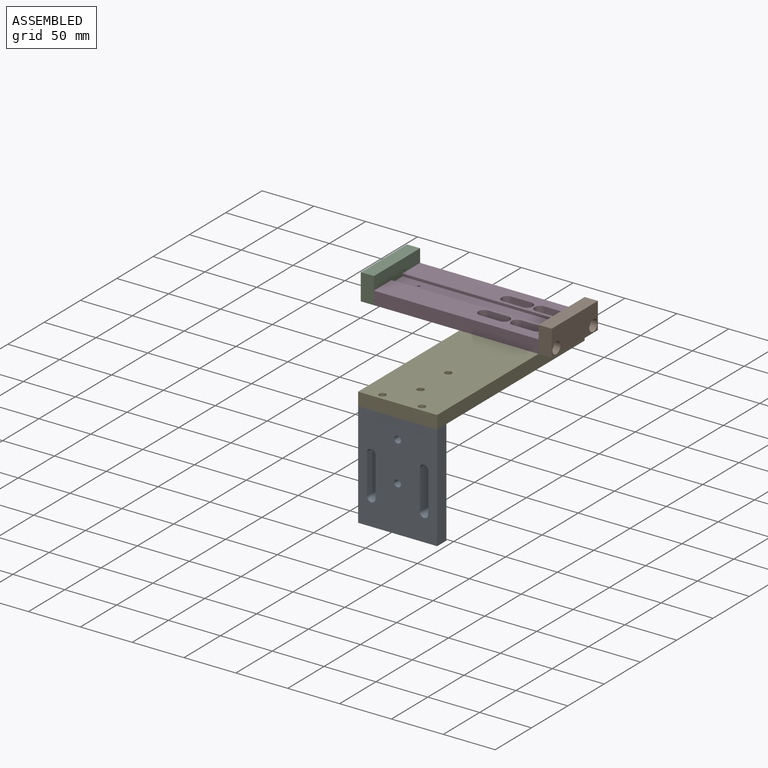
[diagram: assembled view]
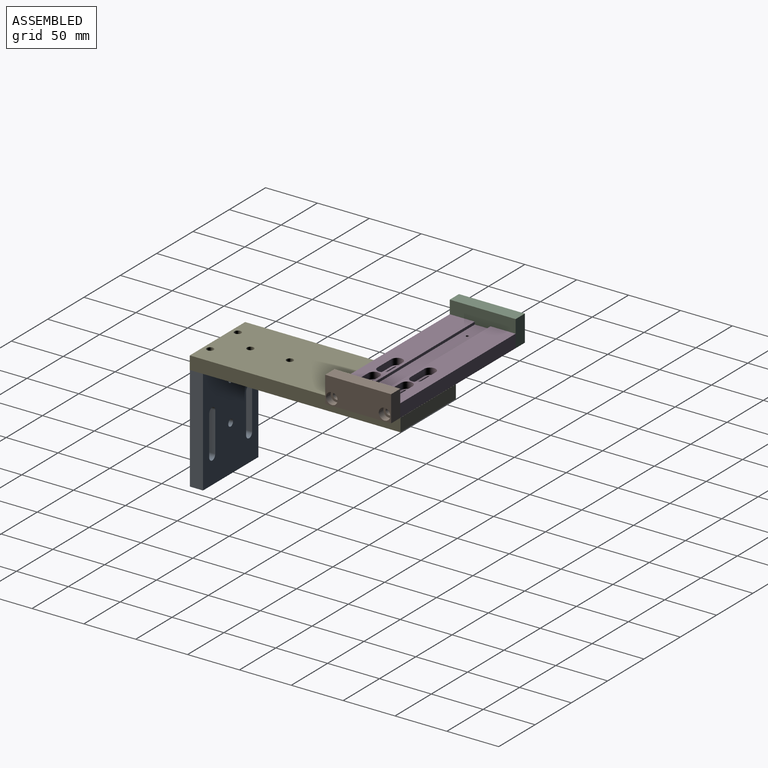
[diagram: assembled view, second angle]
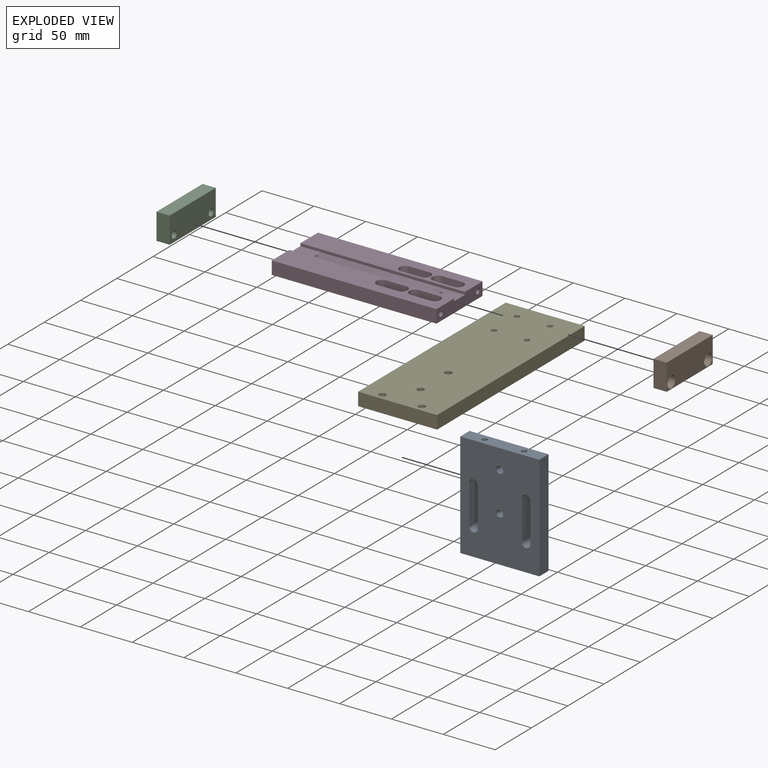
[diagram: exploded view]
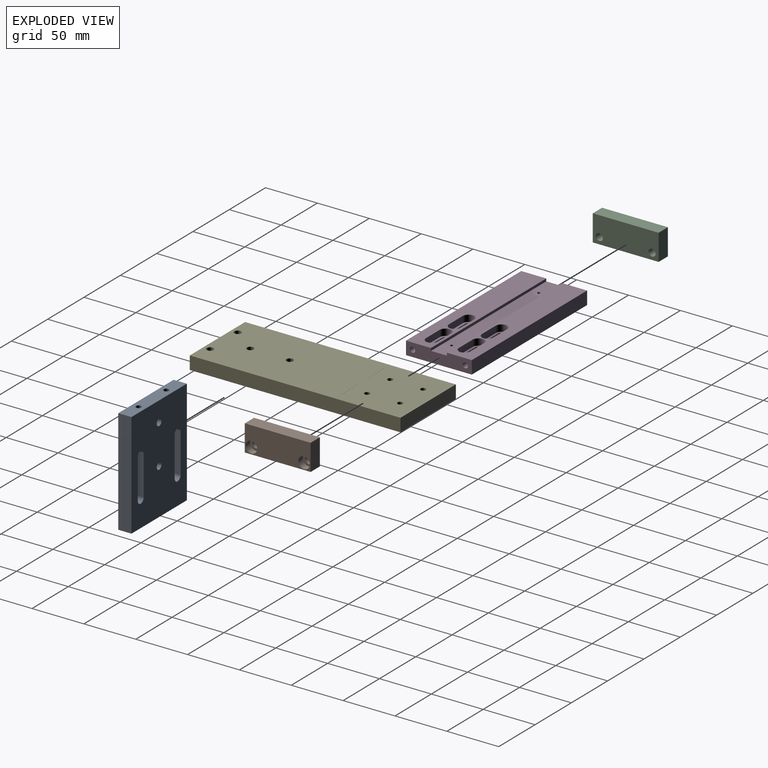
[diagram: exploded view, second angle]
ASSEMBLY  parts=5 mates=3
PART A: 20 faces, bbox 76.2x12.7x101.6 mm
  f0: plane 101.6x76.2mm, normal (0,-1,0), area 6944.1mm2, adj f1,f3,f4,f5,f6,f7,f8,f9
  f1: plane 76.2x12.7mm, normal (0,0,-1), area 967.7mm2, adj f0,f2,f4,f5
  f2: plane 101.6x76.2mm, normal (0,1,0), area 6944.1mm2, adj f1,f3,f4,f5,f6,f7,f8,f9
  f3: plane 76.2x12.7mm, normal (0,0,1), area 926.8mm2, adj f0,f2,f4,f5,f14,f16
  f4: plane 101.6x12.7mm, normal (1,0,0), area 1290.3mm2, adj f0,f1,f2,f3
  f5: plane 101.6x12.7mm, normal (-1,0,0), area 1290.3mm2, adj f0,f1,f2,f3
  f6: plane 38.1x12.7mm, normal (1,0,0), area 483.9mm2, adj f0,f2,f7,f9
  f7: cylinder r=4.1mm len=12.7mm, axis (0,-1,0), area 163.7mm2, adj f0,f2,f6,f8
  f8: plane 38.1x12.7mm, normal (-1,0,0), area 483.9mm2, adj f0,f2,f7,f9
  f9: cylinder r=4.1mm len=12.7mm, axis (0,-1,0), area 163.7mm2, adj f0,f2,f6,f8
  f10: plane 38.1x12.7mm, normal (1,0,0), area 483.9mm2, adj f0,f2,f11,f13
  f11: cylinder r=4.1mm len=12.7mm, axis (0,-1,0), area 163.7mm2, adj f0,f2,f10,f12
  f12: plane 38.1x12.7mm, normal (-1,0,0), area 483.9mm2, adj f0,f2,f11,f13
  f13: cylinder r=4.1mm len=12.7mm, axis (0,-1,0), area 163.7mm2, adj f0,f2,f10,f12
  f14: cylinder r=2.55mm len=29.21mm, axis (0,0,1), area 468.5mm2, adj f3,f15
  f15: cone r=0mm half-angle=59deg, axis (0,0,1), area 23.9mm2, adj f14
  f16: cylinder r=2.55mm len=29.21mm, axis (0,0,1), area 468.5mm2, adj f3,f17
  f17: cone r=0mm half-angle=59deg, axis (0,0,1), area 23.9mm2, adj f16
  f18: cylinder r=3.26mm len=12.7mm, axis (0,1,0), area 260.4mm2, adj f0,f2
  f19: cylinder r=3.26mm len=12.7mm, axis (0,1,0), area 260.4mm2, adj f0,f2
PART B: 12 faces, bbox 25.4x63.5x12.7 mm
  f0: plane 25.4x12.7mm, normal (0,-1,0), area 322.6mm2, adj f1,f3,f4,f5
  f1: plane 63.5x25.4mm, normal (0,0,-1), area 1541.2mm2, adj f0,f2,f4,f5,f6,f9
  f2: plane 25.4x12.7mm, normal (0,1,0), area 322.6mm2, adj f1,f3,f4,f5
  f3: plane 63.5x25.4mm, normal (0,0,1), area 1418.9mm2, adj f0,f2,f4,f5,f8,f11
  f4: plane 63.5x12.7mm, normal (1,0,0), area 806.4mm2, adj f0,f1,f2,f3
  f5: plane 63.5x12.7mm, normal (-1,0,0), area 806.4mm2, adj f0,f1,f2,f3
  f6: cylinder r=3.38mm len=6.76mm, axis (0,0,1), area 134.8mm2, adj f1,f7
  f7: plane 11.11x11.11mm, normal (0,0,1), area 61.1mm2, adj f6,f8
  f8: cylinder r=5.56mm len=11.11mm, axis (0,0,1), area 221.7mm2, adj f3,f7
  f9: cylinder r=3.38mm len=6.76mm, axis (0,0,1), area 134.8mm2, adj f1,f10
  f10: plane 11.11x11.11mm, normal (0,0,1), area 61.1mm2, adj f9,f11
  f11: cylinder r=5.56mm len=11.11mm, axis (0,0,1), area 221.7mm2, adj f3,f10
PART C: same geometry as B
PART D: 56 faces, bbox 158.8x63.5x12.7 mm
  f0: plane 158.75x24.13mm, normal (0,0,1), area 3212.4mm2, adj f22,f23,f24,f33,f34,f35,f36,f48
  f1: cylinder r=1.35mm len=10.11mm, axis (0,0,1), area 85.9mm2, adj f20,f55
  f2: cylinder r=1.35mm len=10.11mm, axis (0,0,1), area 85.9mm2, adj f20,f55
  f3: plane 158.75x24.13mm, normal (0,0,1), area 3212.4mm2, adj f21,f23,f24,f39,f40,f41,f42,f43
  f4: plane 18.87x6.3mm, normal (0,1,0), area 119mm2, adj f5,f7,f20,f52
  f5: cylinder r=3.38mm len=6.76mm, axis (0,0,1), area 68mm2, adj f4,f6,f20,f52
  f6: plane 19.05x6.3mm, normal (0,-1,0), area 120.1mm2, adj f5,f7,f20,f52
  f7: cylinder r=3.38mm len=6.76mm, axis (0,0,1), area 66.9mm2, adj f4,f6,f20,f52
  f8: plane 19.05x6.3mm, normal (0,-1,0), area 120.1mm2, adj f9,f11,f20,f47
  f9: cylinder r=3.38mm len=6.76mm, axis (0,0,1), area 66.9mm2, adj f8,f10,f20,f47
  f10: plane 19.05x6.3mm, normal (0,1,0), area 120.1mm2, adj f9,f11,f20,f47
  f11: cylinder r=3.38mm len=6.76mm, axis (0,0,1), area 66.9mm2, adj f8,f10,f20,f47
  f12: plane 19.05x6.3mm, normal (0,-1,0), area 120.1mm2, adj f13,f15,f20,f38
  f13: cylinder r=3.38mm len=6.76mm, axis (0,0,1), area 66.9mm2, adj f12,f14,f20,f38
  f14: plane 19.05x6.3mm, normal (0,1,0), area 120.1mm2, adj f13,f15,f20,f38
  f15: cylinder r=3.38mm len=6.76mm, axis (0,0,1), area 66.9mm2, adj f12,f14,f20,f38
  f16: plane 19.09x6.3mm, normal (0,1,0), area 120.3mm2, adj f17,f19,f20,f37
  f17: cylinder r=3.38mm len=6.76mm, axis (0,0,1), area 66.7mm2, adj f16,f18,f20,f37
  f18: plane 19.05x6.3mm, normal (0,-1,0), area 120.1mm2, adj f17,f19,f20,f37
  f19: cylinder r=3.38mm len=6.76mm, axis (0,0,1), area 66.9mm2, adj f16,f18,f20,f37
  f20: plane 158.75x63.5mm, normal (0,0,-1), area 9410.9mm2, adj f1,f2,f4,f5,f6,f7,f8,f9
  f21: plane 158.75x12.65mm, normal (0,1,0), area 2008.7mm2, adj f3,f20,f23,f24
  f22: plane 158.75x12.65mm, normal (0,-1,0), area 2008.7mm2, adj f0,f20,f23,f24
  f23: plane 63.5x12.65mm, normal (-1,0,0), area 723.8mm2, adj f0,f3,f20,f21,f22,f29,f31,f53
  f24: plane 63.5x12.65mm, normal (1,0,0), area 723.8mm2, adj f0,f3,f20,f21,f22,f25,f27,f53
  f25: cylinder r=2.55mm len=29.21mm, axis (1,0,0), area 468.5mm2, adj f24,f26
  f26: cone r=0mm half-angle=59deg, axis (1,0,0), area 23.9mm2, adj f25
  f27: cylinder r=2.55mm len=29.21mm, axis (1,0,0), area 468.5mm2, adj f24,f28
  f28: cone r=0mm half-angle=59deg, axis (1,0,0), area 23.9mm2, adj f27
  f29: cylinder r=2.55mm len=29.21mm, axis (-1,0,0), area 468.5mm2, adj f23,f30
  f30: cone r=0mm half-angle=59deg, axis (-1,0,0), area 23.9mm2, adj f29
  f31: cylinder r=2.55mm len=29.21mm, axis (-1,0,0), area 468.5mm2, adj f23,f32
  f32: cone r=0mm half-angle=59deg, axis (-1,0,0), area 23.9mm2, adj f31
  f33: plane 19.1x6.35mm, normal (0,1,0), area 121.3mm2, adj f0,f34,f36,f37
  f34: cylinder r=5.56mm len=11.13mm, axis (0,0,1), area 110.6mm2, adj f0,f33,f35,f37
  f35: plane 19.05x6.35mm, normal (0,-1,0), area 121mm2, adj f0,f34,f36,f37
  f36: cylinder r=5.56mm len=11.13mm, axis (0,0,1), area 111mm2, adj f0,f33,f35,f37
  f37: plane 30.18x11.13mm, normal (0,0,1), area 144.6mm2, adj f16,f17,f18,f19,f33,f34,f35,f36
  f38: plane 30.18x11.13mm, normal (0,0,1), area 144.6mm2, adj f12,f13,f14,f15,f39,f40,f41,f42
  f39: plane 19.05x6.35mm, normal (0,-1,0), area 121mm2, adj f3,f38,f40,f42
  f40: cylinder r=5.56mm len=11.13mm, axis (0,0,1), area 111mm2, adj f3,f38,f39,f41
  f41: plane 19.05x6.35mm, normal (0,1,0), area 121mm2, adj f3,f38,f40,f42
  f42: cylinder r=5.56mm len=11.13mm, axis (0,0,1), area 111mm2, adj f3,f38,f39,f41
  f43: plane 19.05x6.35mm, normal (0,-1,0), area 121mm2, adj f3,f44,f46,f47
  f44: cylinder r=5.56mm len=11.13mm, axis (0,0,1), area 111mm2, adj f3,f43,f45,f47
  f45: plane 19.05x6.35mm, normal (0,1,0), area 121mm2, adj f3,f44,f46,f47
  f46: cylinder r=5.56mm len=11.13mm, axis (0,0,1), area 111mm2, adj f3,f43,f45,f47
  f47: plane 30.18x11.13mm, normal (0,0,1), area 144.6mm2, adj f8,f9,f10,f11,f43,f44,f45,f46
  f48: plane 18.88x6.35mm, normal (0,1,0), area 119.9mm2, adj f0,f49,f51,f52
  f49: cylinder r=5.56mm len=11.12mm, axis (0,0,1), area 112mm2, adj f0,f48,f50,f52
  f50: plane 19.05x6.35mm, normal (0,-1,0), area 121mm2, adj f0,f49,f51,f52
  f51: cylinder r=5.56mm len=11.13mm, axis (0,0,1), area 111mm2, adj f0,f48,f50,f52
  f52: plane 30.17x11.13mm, normal (0,0,1), area 144.5mm2, adj f4,f5,f6,f7,f48,f49,f50,f51
  f53: plane 158.75x2.54mm, normal (0,1,0), area 403.2mm2, adj f0,f23,f24,f55
  f54: plane 158.75x2.54mm, normal (0,-1,0), area 403.2mm2, adj f3,f23,f24,f55
  f55: plane 158.75x15.24mm, normal (0,0,1), area 2407.9mm2, adj f1,f2,f23,f24,f53,f54
PART E: 18 faces, bbox 76.2x203.2x12.7 mm
  f0: plane 76.2x63.5mm, normal (0,0,1), area 4756.8mm2, adj f1,f7,f8,f9,f10,f11,f12,f13
  f1: plane 76.2x0.05mm, normal (0,1,0), area 3.5mm2, adj f0,f2,f8,f9
  f2: plane 139.58x76.2mm, normal (0,0,1), area 10502.3mm2, adj f1,f3,f8,f9,f14,f15,f16,f17
  f3: plane 76.2x12.7mm, normal (0,-1,0), area 967.7mm2, adj f2,f4,f8,f9
  f4: plane 203.2x76.2mm, normal (0,0,-1), area 15268.1mm2, adj f3,f5,f8,f9,f10,f11,f12,f13
  f5: plane 76.2x12.7mm, normal (0,1,0), area 967.7mm2, adj f4,f6,f8,f9
  f6: plane 76.2x0.12mm, normal (0,0,1), area 8.9mm2, adj f5,f7,f8,f9
  f7: plane 76.2x0.05mm, normal (0,-1,0), area 3.5mm2, adj f0,f6,f8,f9
  f8: plane 203.2x12.7mm, normal (1,0,0), area 2577.7mm2, adj f0,f1,f2,f3,f4,f5,f6,f7
  f9: plane 203.2x12.7mm, normal (-1,0,0), area 2577.7mm2, adj f0,f1,f2,f3,f4,f5,f6,f7
  f10: cylinder r=2.55mm len=12.65mm, axis (0,0,1), area 202.9mm2, adj f0,f4
  f11: cylinder r=2.55mm len=12.65mm, axis (0,0,1), area 202.9mm2, adj f0,f4
  f12: cylinder r=2.55mm len=12.65mm, axis (0,0,1), area 202.9mm2, adj f0,f4
  f13: cylinder r=2.55mm len=12.65mm, axis (0,0,1), area 202.9mm2, adj f0,f4
  f14: cylinder r=3.26mm len=12.7mm, axis (0,0,1), area 260.4mm2, adj f2,f4
  f15: cylinder r=3.26mm len=12.7mm, axis (0,0,1), area 260.4mm2, adj f2,f4
  f16: cylinder r=3.26mm len=12.7mm, axis (0,0,1), area 260.4mm2, adj f2,f4
  f17: cylinder r=3.26mm len=12.7mm, axis (0,0,1), area 260.4mm2, adj f2,f4
PLACE A t=(-76.2,20.64,0.05)mm
PLACE B rot(axis=(0,1,0),90deg) t=(-55.13,233.27,38.1)mm
PLACE C rot(axis=(-0.71,0,0.71),180deg) t=(-103.36,-36.42,38.1)mm
PLACE D t=(0.13,3.17,0.05)mm
PLACE E t=(-76.2,3.17,0.05)mm
MATE fastened B.f6 <-> D.f27  axis (-1,0,0) through (0.13,123.82,19.05)mm
MATE fastened A.f14 <-> E.f14  axis (0,0,1) through (-57.15,-66.56,0.05)mm
MATE fastened C.f6 <-> D.f25  axis (1,0,0) through (-158.62,73.02,19.05)mm
